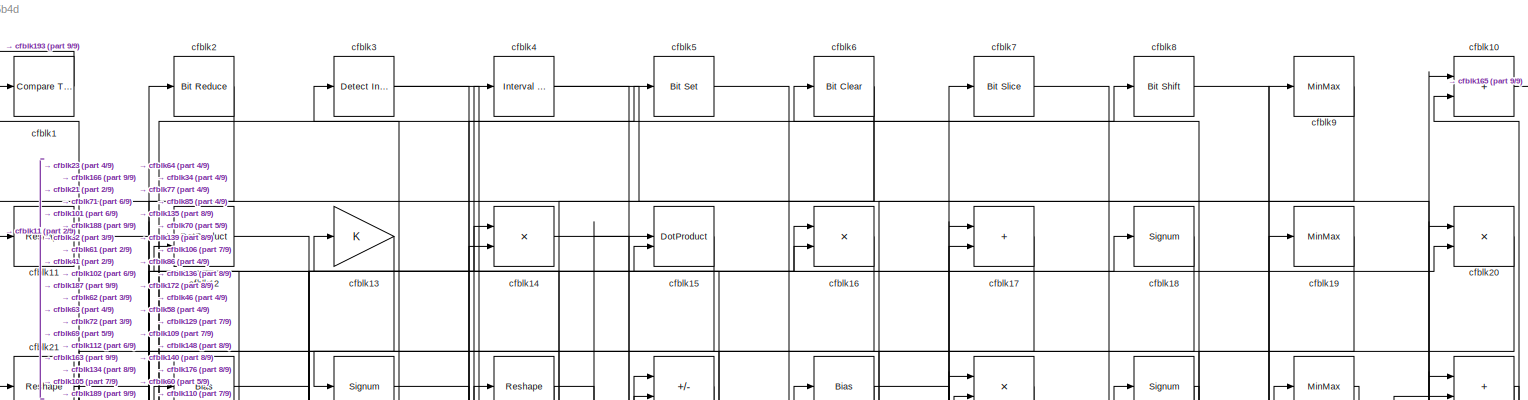
[diagram: root canvas - part 1/9, full width, top band]
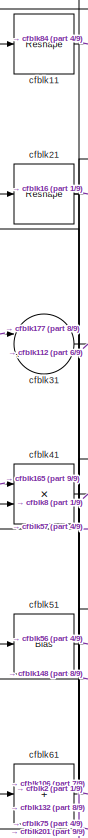
[diagram: root canvas - part 2/9, top left region]
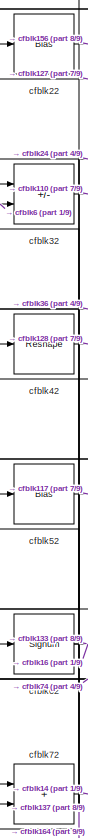
[diagram: root canvas - part 3/9, top left region]
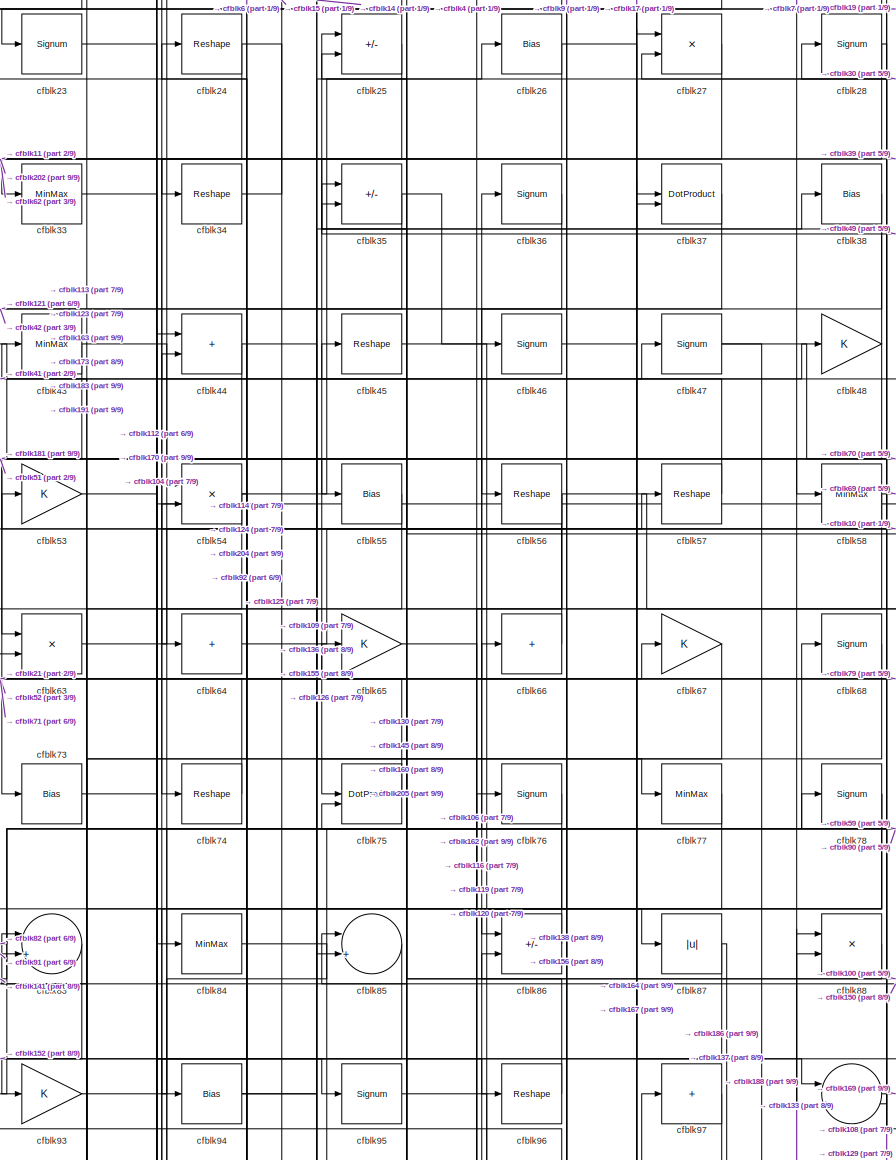
[diagram: root canvas - part 4/9, top center region]
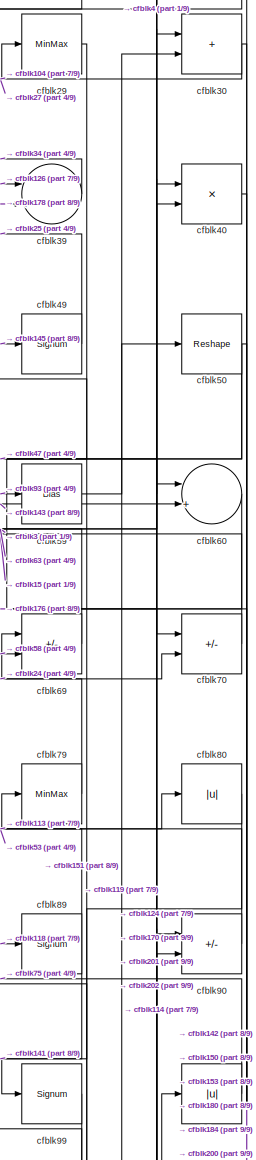
[diagram: root canvas - part 5/9, top right region]
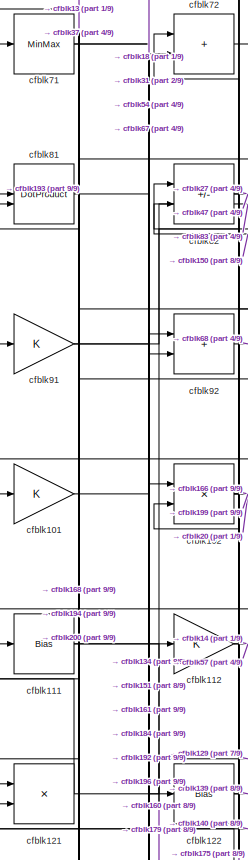
[diagram: root canvas - part 6/9, middle left region]
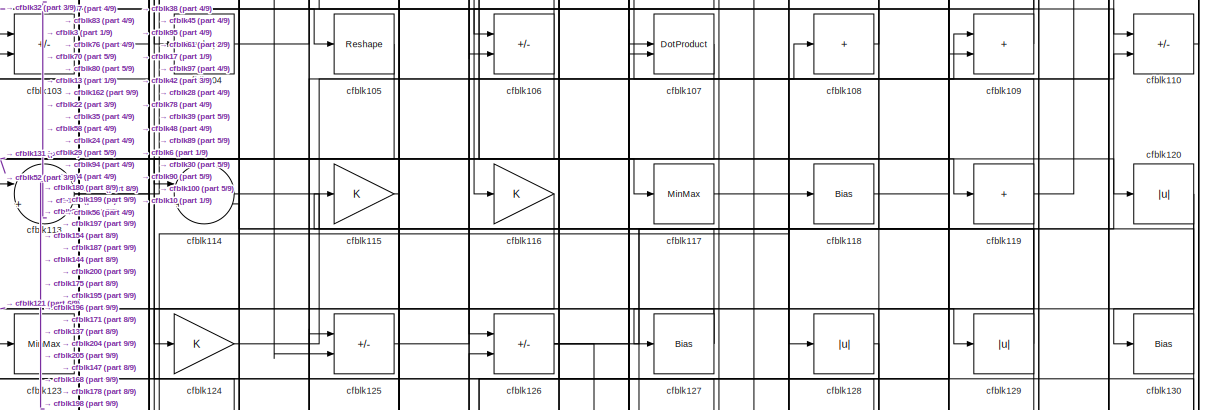
[diagram: root canvas - part 7/9, full width, middle band]
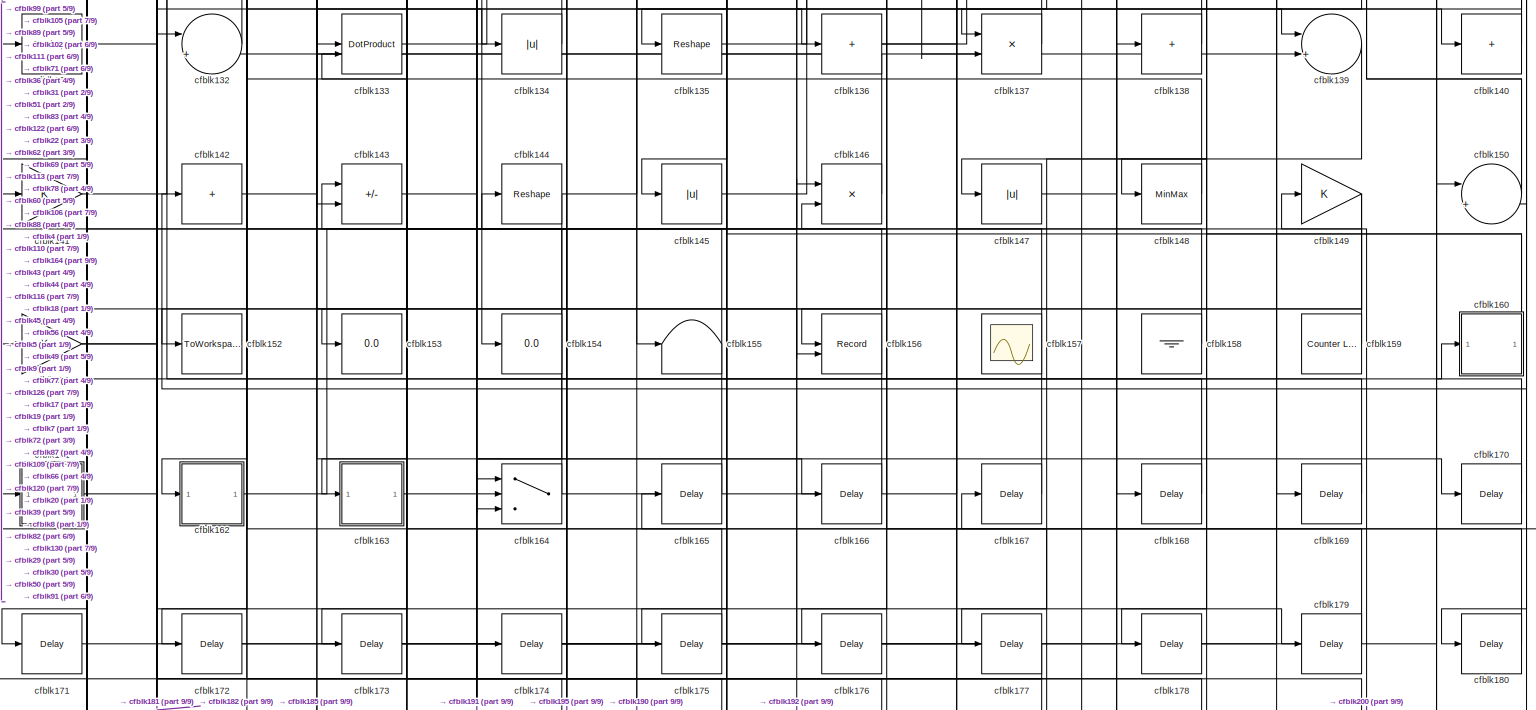
[diagram: root canvas - part 8/9, full width, bottom band]
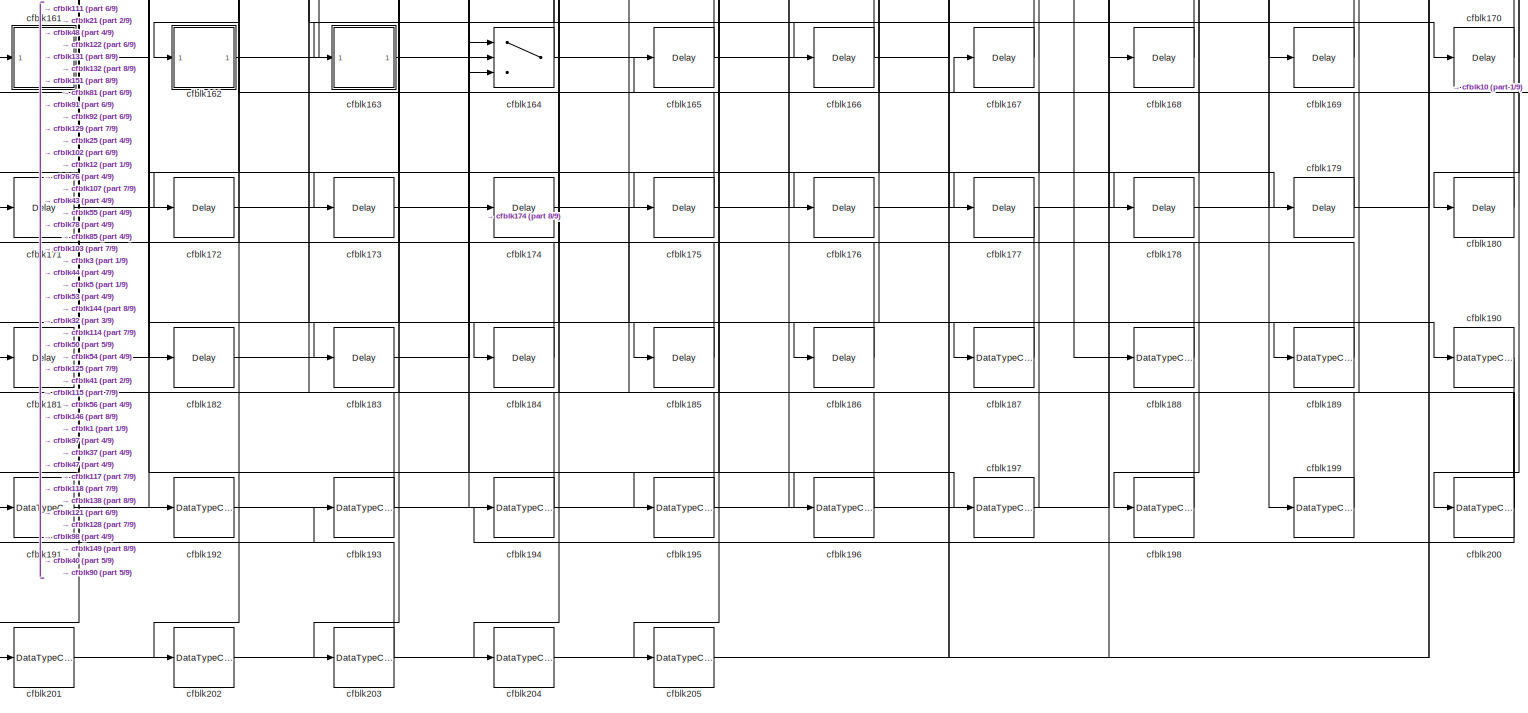
[diagram: root canvas - part 9/9, full width, bottom band]
MODEL slx_a14f3ed95b4d
KIND model
CONFIG AbsTol = auto
CONFIG EnableMultiTasking = off
CONFIG FixedStep = auto
CONFIG MaxStep = auto
CONFIG MinStep = auto
CONFIG RelTol = 1e-3
CONFIG SampleTimeConstraint = Unconstrained
CONFIG SolverName = VariableStepAuto
CONFIG StartTime = 0.0
CONFIG StopTime = 10.0
BLOCK [Reference] cfblk1  REF=hdlsllib/Logic and Bit
Operations/Compare
To Constant
  SourceBlock = hdlsllib/Logic and Bit\nOperations/Compare\nTo Constant
  SourceType = Compare To Constant
BLOCK [Sum] cfblk10
  IconShape = rectangular
BLOCK [Abs] cfblk100
  SaturateOnIntegerOverflow = off
BLOCK [Gain] cfblk101
BLOCK [Product] cfblk102
  Inputs = */
  RndMeth = Zero
  SaturateOnIntegerOverflow = on
BLOCK [Sum] cfblk103
  IconShape = rectangular
  Inputs = +-
BLOCK [Reshape] cfblk104
BLOCK [Reshape] cfblk105
BLOCK [Sum] cfblk106
  IconShape = rectangular
  Inputs = +-
BLOCK [DotProduct] cfblk107
  OutDataTypeStr = Inherit: Inherit via internal rule
BLOCK [Sum] cfblk108
  IconShape = rectangular
  Inputs = +
BLOCK [Sum] cfblk109
  IconShape = rectangular
BLOCK [Reshape] cfblk11
BLOCK [Sum] cfblk110
  IconShape = rectangular
  Inputs = +-
BLOCK [Bias] cfblk111
  Bias = 0.0
  SaturateOnIntegerOverflow = off
BLOCK [Gain] cfblk112
BLOCK [Sum] cfblk113
  Inputs = |++
BLOCK [Sum] cfblk114
  Inputs = |++
BLOCK [Gain] cfblk115
BLOCK [Gain] cfblk116
BLOCK [MinMax] cfblk117
BLOCK [Bias] cfblk118
  Bias = 0.0
  SaturateOnIntegerOverflow = off
BLOCK [Sum] cfblk119
  IconShape = rectangular
  Inputs = +
BLOCK [DotProduct] cfblk12
  OutDataTypeStr = Inherit: Inherit via internal rule
BLOCK [Abs] cfblk120
  SaturateOnIntegerOverflow = off
BLOCK [Product] cfblk121
  Inputs = */
  RndMeth = Zero
  SaturateOnIntegerOverflow = on
BLOCK [Bias] cfblk122
  Bias = 0.0
  SaturateOnIntegerOverflow = off
BLOCK [MinMax] cfblk123
BLOCK [Gain] cfblk124
BLOCK [Sum] cfblk125
  IconShape = rectangular
  Inputs = +-
BLOCK [Sum] cfblk126
  IconShape = rectangular
  Inputs = +-
BLOCK [Bias] cfblk127
  Bias = 0.0
  SaturateOnIntegerOverflow = off
BLOCK [Abs] cfblk128
  SaturateOnIntegerOverflow = off
BLOCK [Abs] cfblk129
  SaturateOnIntegerOverflow = off
BLOCK [Gain] cfblk13
BLOCK [Bias] cfblk130
  Bias = 0.0
  SaturateOnIntegerOverflow = off
BLOCK [Reshape] cfblk131
BLOCK [Sum] cfblk132
  Inputs = |++
BLOCK [DotProduct] cfblk133
  OutDataTypeStr = Inherit: Inherit via internal rule
BLOCK [Abs] cfblk134
  SaturateOnIntegerOverflow = off
BLOCK [Reshape] cfblk135
BLOCK [Sum] cfblk136
  IconShape = rectangular
  Inputs = +
BLOCK [Product] cfblk137
  Inputs = */
  RndMeth = Zero
  SaturateOnIntegerOverflow = on
BLOCK [Sum] cfblk138
  IconShape = rectangular
  Inputs = +
BLOCK [Sum] cfblk139
  Inputs = |++
BLOCK [Product] cfblk14
  Inputs = */
  RndMeth = Zero
  SaturateOnIntegerOverflow = on
BLOCK [Sum] cfblk140
  IconShape = rectangular
  Inputs = +
BLOCK [Gain] cfblk141
BLOCK [Sum] cfblk142
  IconShape = rectangular
  Inputs = +
BLOCK [Sum] cfblk143
  IconShape = rectangular
  Inputs = +-
BLOCK [Reshape] cfblk144
BLOCK [Abs] cfblk145
  SaturateOnIntegerOverflow = off
BLOCK [Product] cfblk146
  Inputs = */
  RndMeth = Zero
  SaturateOnIntegerOverflow = on
BLOCK [Abs] cfblk147
  SaturateOnIntegerOverflow = off
BLOCK [MinMax] cfblk148
BLOCK [Gain] cfblk149
BLOCK [DotProduct] cfblk15
  OutDataTypeStr = Inherit: Inherit via internal rule
BLOCK [Sum] cfblk150
  Inputs = |++
BLOCK [Gain] cfblk151
BLOCK [ToWorkspace] cfblk152
  MaxDataPoints = inf
  SampleTime = -1
  SaveFormat = Timeseries
  VariableName = simout
BLOCK [Display] cfblk153
  Decimation = 1
BLOCK [Display] cfblk154
  Decimation = 1
BLOCK [Terminator] cfblk155
BLOCK [Record] cfblk156
  CompatibilityTag = XY
  FileSettingsInternal = {"entries":[{"content":{"excelSettings":{"content":{},"type":"Streamout.ExcelSettings"}},"type":"Streamout.FileSettingStorage","uuid":""}],"packageUris":["http:\/\/schema.mathworks.com\/mf0\/streamout_blocks\/R2020a"],"version":"1.0"}
  Layout = [1 1]
  SignalsInternal = {"entries":[{"content":{"signals":[{"content":{"blockPath":[],"dimensions":[1],"domain":"","lineColor":"#a2142f","plots":[1],"port":1,"signalID":4282,"signalName":"XY Graph:1"},"type":"RecordBlkView.Signal","uuid":""},{"content":{"blockPath":[],"dimensions":[1],"domain":"","lineColor":"#139fff","plots":[1],"port":2,"signalID":4285,"signalName":"XY Graph:2"},"type":"RecordBlkView.Signal","uuid":""}...<+146ch>
  VisualizationBindings = {"xyplotplugin":{"info":[{"series":[{"bindingParametersList":[{"parameter":"X-Axis","signalID":4282,"signalName":"XY Graph:1"},{"parameter":"Y-Axis","signalID":4285,"signalName":"XY Graph:2"}],"seriesID":14255}],"subplotID":1}]}}
  st = -1
BLOCK [Scope] cfblk157
  Floating = on
  NumInputPorts = 1
  ScopeSpecificationString = Simulink.scopes.TimeScopeBlockCfg('CurrentConfiguration', extmgr.ConfigurationSet(extmgr.Configuration('Core','General UI',true,'FigureColor',[0.156862745098039 0.156862745098039 0.156862745098039]),extmgr.Configuration('Core','Source UI',true),extmgr.Configuration('Sources','WiredSimulink',true,'DataLoggingVariableName','ScopeData1','DataLoggingSaveFormat','StructureWithTime','DataLoggingLimitDat...<+2713ch>
BLOCK [Ground] cfblk158
BLOCK [Reference] cfblk159  REF=hdlsllib/Sources/Counter
Limited
  SourceBlock = hdlsllib/Sources/Counter\nLimited
  SourceType = Counter Limited
BLOCK [Product] cfblk16
  Inputs = */
  RndMeth = Zero
  SaturateOnIntegerOverflow = on
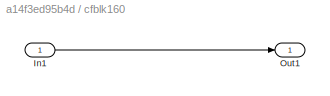
BLOCK [SubSystem] cfblk160
  LibrarySourceBlock = hdlsllib/Ports &\nSubsystems/Subsystem
BLOCK [Inport] cfblk160/In1
BLOCK [Outport] cfblk160/Out1
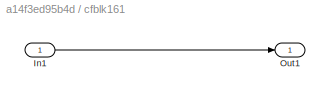
BLOCK [SubSystem] cfblk161
  LibrarySourceBlock = hdlsllib/Ports &\nSubsystems/Subsystem
BLOCK [Inport] cfblk161/In1
BLOCK [Outport] cfblk161/Out1
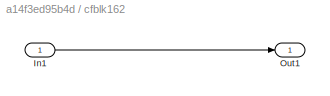
BLOCK [SubSystem] cfblk162
  LibrarySourceBlock = hdlsllib/Ports &\nSubsystems/Subsystem
BLOCK [Inport] cfblk162/In1
BLOCK [Outport] cfblk162/Out1
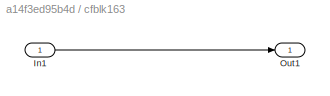
BLOCK [SubSystem] cfblk163
  LibrarySourceBlock = hdlsllib/Ports &\nSubsystems/Subsystem
BLOCK [Inport] cfblk163/In1
BLOCK [Outport] cfblk163/Out1
BLOCK [Switch] cfblk164
  InputSameDT = off
  SaturateOnIntegerOverflow = off
BLOCK [Delay] cfblk165
  InputPortMap = u0
  SampleTime = 1
BLOCK [Delay] cfblk166
  InputPortMap = u0
  SampleTime = 1
BLOCK [Delay] cfblk167
  InputPortMap = u0
  SampleTime = 1
BLOCK [Delay] cfblk168
  InputPortMap = u0
  SampleTime = 1
BLOCK [Delay] cfblk169
  InputPortMap = u0
  SampleTime = 1
BLOCK [Sum] cfblk17
  IconShape = rectangular
BLOCK [Delay] cfblk170
  InputPortMap = u0
  SampleTime = 1
BLOCK [Delay] cfblk171
  InputPortMap = u0
  SampleTime = 1
BLOCK [Delay] cfblk172
  InputPortMap = u0
  SampleTime = 1
BLOCK [Delay] cfblk173
  InputPortMap = u0
  SampleTime = 1
BLOCK [Delay] cfblk174
  InputPortMap = u0
  SampleTime = 1
BLOCK [Delay] cfblk175
  InputPortMap = u0
  SampleTime = 1
BLOCK [Delay] cfblk176
  InputPortMap = u0
  SampleTime = 1
BLOCK [Delay] cfblk177
  InputPortMap = u0
  SampleTime = 1
BLOCK [Delay] cfblk178
  InputPortMap = u0
  SampleTime = 1
BLOCK [Delay] cfblk179
  InputPortMap = u0
  SampleTime = 1
BLOCK [Signum] cfblk18
BLOCK [Delay] cfblk180
  InputPortMap = u0
  SampleTime = 1
BLOCK [Delay] cfblk181
  InputPortMap = u0
  SampleTime = 1
BLOCK [Delay] cfblk182
  InputPortMap = u0
  SampleTime = 1
BLOCK [Delay] cfblk183
  InputPortMap = u0
  SampleTime = 1
BLOCK [Delay] cfblk184
  InputPortMap = u0
  SampleTime = 1
BLOCK [Delay] cfblk185
  InputPortMap = u0
  SampleTime = 1
BLOCK [Delay] cfblk186
  InputPortMap = u0
  SampleTime = 1
BLOCK [DataTypeConversion] cfblk187
  OutDataTypeStr = uint8
  RndMeth = Floor
  SaturateOnIntegerOverflow = off
BLOCK [DataTypeConversion] cfblk188
  OutDataTypeStr = uint8
  RndMeth = Floor
  SaturateOnIntegerOverflow = off
BLOCK [DataTypeConversion] cfblk189
  OutDataTypeStr = uint8
  RndMeth = Floor
  SaturateOnIntegerOverflow = off
BLOCK [MinMax] cfblk19
BLOCK [DataTypeConversion] cfblk190
  OutDataTypeStr = uint8
  RndMeth = Floor
  SaturateOnIntegerOverflow = off
BLOCK [DataTypeConversion] cfblk191
  OutDataTypeStr = uint8
  RndMeth = Floor
  SaturateOnIntegerOverflow = off
BLOCK [DataTypeConversion] cfblk192
  OutDataTypeStr = uint8
  RndMeth = Floor
  SaturateOnIntegerOverflow = off
BLOCK [DataTypeConversion] cfblk193
  OutDataTypeStr = uint8
  RndMeth = Floor
  SaturateOnIntegerOverflow = off
BLOCK [DataTypeConversion] cfblk194
  OutDataTypeStr = uint8
  RndMeth = Floor
  SaturateOnIntegerOverflow = off
BLOCK [DataTypeConversion] cfblk195
  RndMeth = Floor
  SaturateOnIntegerOverflow = off
BLOCK [DataTypeConversion] cfblk196
  OutDataTypeStr = uint8
  RndMeth = Floor
  SaturateOnIntegerOverflow = off
BLOCK [DataTypeConversion] cfblk197
  OutDataTypeStr = uint8
  RndMeth = Floor
  SaturateOnIntegerOverflow = off
BLOCK [DataTypeConversion] cfblk198
  OutDataTypeStr = uint8
  RndMeth = Floor
  SaturateOnIntegerOverflow = off
BLOCK [DataTypeConversion] cfblk199
  OutDataTypeStr = uint8
  RndMeth = Floor
  SaturateOnIntegerOverflow = off
BLOCK [Reference] cfblk2  REF=hdlsllib/Logic and Bit
Operations/Bit Reduce
  SourceBlock = hdlsllib/Logic and Bit\nOperations/Bit Reduce
  SourceType = Bit Reduce
BLOCK [Product] cfblk20
  Inputs = */
  RndMeth = Zero
  SaturateOnIntegerOverflow = on
BLOCK [DataTypeConversion] cfblk200
  RndMeth = Floor
  SaturateOnIntegerOverflow = off
BLOCK [DataTypeConversion] cfblk201
  OutDataTypeStr = uint8
  RndMeth = Floor
  SaturateOnIntegerOverflow = off
BLOCK [DataTypeConversion] cfblk202
  OutDataTypeStr = uint8
  RndMeth = Floor
  SaturateOnIntegerOverflow = off
BLOCK [DataTypeConversion] cfblk203
  RndMeth = Floor
  SaturateOnIntegerOverflow = off
BLOCK [DataTypeConversion] cfblk204
  OutDataTypeStr = uint8
  RndMeth = Floor
  SaturateOnIntegerOverflow = off
BLOCK [DataTypeConversion] cfblk205
  OutDataTypeStr = uint8
  RndMeth = Floor
  SaturateOnIntegerOverflow = off
BLOCK [Reshape] cfblk21
BLOCK [Bias] cfblk22
  Bias = 0.0
  SaturateOnIntegerOverflow = off
BLOCK [Signum] cfblk23
BLOCK [Reshape] cfblk24
BLOCK [Sum] cfblk25
  IconShape = rectangular
  Inputs = +-
BLOCK [Bias] cfblk26
  Bias = 0.0
  SaturateOnIntegerOverflow = off
BLOCK [Product] cfblk27
  Inputs = */
  RndMeth = Zero
  SaturateOnIntegerOverflow = on
BLOCK [Signum] cfblk28
BLOCK [MinMax] cfblk29
BLOCK [Reference] cfblk3  REF=simulink/Logic and Bit
Operations/Detect
Increase
  LibrarySourceBlock = hdlsllib/Logic and Bit\nOperations/Detect\nIncrease
  SourceBlock = simulink/Logic and Bit\nOperations/Detect\nIncrease
  SourceType = Detect Increase
BLOCK [Sum] cfblk30
  IconShape = rectangular
BLOCK [Sum] cfblk31
  Inputs = |++
BLOCK [Sum] cfblk32
  IconShape = rectangular
  Inputs = +-
BLOCK [MinMax] cfblk33
BLOCK [Reshape] cfblk34
BLOCK [Sum] cfblk35
  IconShape = rectangular
  Inputs = +-
BLOCK [Signum] cfblk36
BLOCK [DotProduct] cfblk37
  OutDataTypeStr = Inherit: Inherit via internal rule
BLOCK [Bias] cfblk38
  Bias = 0.0
  SaturateOnIntegerOverflow = off
BLOCK [Sum] cfblk39
  Inputs = |++
BLOCK [Reference] cfblk4  REF=hdlsllib/Logic and Bit
Operations/Interval Test
  SourceBlock = hdlsllib/Logic and Bit\nOperations/Interval Test
  SourceType = Interval Test
BLOCK [Product] cfblk40
  Inputs = */
  RndMeth = Zero
  SaturateOnIntegerOverflow = on
BLOCK [Product] cfblk41
  Inputs = */
  RndMeth = Zero
  SaturateOnIntegerOverflow = on
BLOCK [Reshape] cfblk42
BLOCK [MinMax] cfblk43
BLOCK [Sum] cfblk44
  IconShape = rectangular
BLOCK [Reshape] cfblk45
BLOCK [Signum] cfblk46
BLOCK [Signum] cfblk47
BLOCK [Gain] cfblk48
BLOCK [Signum] cfblk49
BLOCK [Reference] cfblk5  REF=simulink/Logic and Bit
Operations/Bit Set
  LibrarySourceBlock = hdlsllib/Logic and Bit\nOperations/Bit Set
  SourceBlock = simulink/Logic and Bit\nOperations/Bit Set
  SourceType = Bit Set
BLOCK [Reshape] cfblk50
BLOCK [Bias] cfblk51
  Bias = 0.0
  SaturateOnIntegerOverflow = off
BLOCK [Bias] cfblk52
  Bias = 0.0
  SaturateOnIntegerOverflow = off
BLOCK [Gain] cfblk53
BLOCK [Product] cfblk54
  Inputs = */
  RndMeth = Zero
  SaturateOnIntegerOverflow = on
BLOCK [Bias] cfblk55
  Bias = 0.0
  SaturateOnIntegerOverflow = off
BLOCK [Reshape] cfblk56
BLOCK [Reshape] cfblk57
BLOCK [MinMax] cfblk58
BLOCK [Bias] cfblk59
  Bias = 0.0
  SaturateOnIntegerOverflow = off
BLOCK [Reference] cfblk6  REF=simulink/Logic and Bit
Operations/Bit Clear
  LibrarySourceBlock = hdlsllib/Logic and Bit\nOperations/Bit Clear
  SourceBlock = simulink/Logic and Bit\nOperations/Bit Clear
  SourceType = Bit Clear
BLOCK [Sum] cfblk60
  Inputs = |++
BLOCK [Sum] cfblk61
  IconShape = rectangular
  Inputs = +
BLOCK [Signum] cfblk62
BLOCK [Product] cfblk63
  Inputs = */
  RndMeth = Zero
  SaturateOnIntegerOverflow = on
BLOCK [Sum] cfblk64
  IconShape = rectangular
  Inputs = +
BLOCK [Gain] cfblk65
BLOCK [Sum] cfblk66
  IconShape = rectangular
  Inputs = +
BLOCK [Gain] cfblk67
BLOCK [Signum] cfblk68
BLOCK [Sum] cfblk69
  IconShape = rectangular
  Inputs = +-
BLOCK [Reference] cfblk7  REF=hdlsllib/Logic and Bit
Operations/Bit Slice
  SourceBlock = hdlsllib/Logic and Bit\nOperations/Bit Slice
  SourceType = Bit Slice
BLOCK [Sum] cfblk70
  IconShape = rectangular
  Inputs = +-
BLOCK [MinMax] cfblk71
BLOCK [Sum] cfblk72
  IconShape = rectangular
BLOCK [Bias] cfblk73
  Bias = 0.0
  SaturateOnIntegerOverflow = off
BLOCK [Reshape] cfblk74
BLOCK [DotProduct] cfblk75
  OutDataTypeStr = Inherit: Inherit via internal rule
BLOCK [Signum] cfblk76
BLOCK [MinMax] cfblk77
BLOCK [Signum] cfblk78
BLOCK [MinMax] cfblk79
BLOCK [Reference] cfblk8  REF=hdlsllib/Logic and Bit
Operations/Bit Shift
  SourceBlock = hdlsllib/Logic and Bit\nOperations/Bit Shift
  SourceType = Bit Shift
BLOCK [Abs] cfblk80
  SaturateOnIntegerOverflow = off
BLOCK [DotProduct] cfblk81
  OutDataTypeStr = Inherit: Inherit via internal rule
BLOCK [Sum] cfblk82
  IconShape = rectangular
  Inputs = +-
BLOCK [Sum] cfblk83
  Inputs = |++
BLOCK [MinMax] cfblk84
BLOCK [Sum] cfblk85
  Inputs = |++
BLOCK [Sum] cfblk86
  IconShape = rectangular
  Inputs = +-
BLOCK [Abs] cfblk87
  SaturateOnIntegerOverflow = off
BLOCK [Product] cfblk88
  Inputs = */
  RndMeth = Zero
  SaturateOnIntegerOverflow = on
BLOCK [Signum] cfblk89
BLOCK [MinMax] cfblk9
BLOCK [Sum] cfblk90
  IconShape = rectangular
  Inputs = +-
BLOCK [Gain] cfblk91
BLOCK [Sum] cfblk92
  IconShape = rectangular
BLOCK [Gain] cfblk93
BLOCK [Bias] cfblk94
  Bias = 0.0
  SaturateOnIntegerOverflow = off
BLOCK [Signum] cfblk95
BLOCK [Reshape] cfblk96
BLOCK [Sum] cfblk97
  IconShape = rectangular
  Inputs = +
BLOCK [Sum] cfblk98
  Inputs = |++
BLOCK [Signum] cfblk99
LINE cfblk100:1 -> cfblk75:2
LINE cfblk101:1 -> cfblk18:1
NET cfblk102:1 -> cfblk166:1, cfblk199:1, cfblk20:2
LINE cfblk103:1 -> cfblk197:1
LINE cfblk104:1 -> cfblk29:1
LINE cfblk105:1 -> cfblk131:1
NET cfblk106:1 -> cfblk154:1, cfblk61:1
LINE cfblk107:1 -> cfblk203:1
LINE cfblk108:1 -> cfblk78:1
LINE cfblk109:1 -> cfblk6:1
LINE cfblk10:1 -> cfblk165:1
LINE cfblk110:1 -> cfblk10:2
NET cfblk111:1 -> cfblk160:1, cfblk179:1
NET cfblk112:1 -> cfblk14:2, cfblk57:1
NET cfblk113:1 -> cfblk70:2, cfblk80:1
LINE cfblk114:1 -> cfblk100:1
LINE cfblk115:1 -> cfblk195:1
LINE cfblk116:1 -> cfblk175:1
LINE cfblk117:1 -> cfblk168:1
LINE cfblk118:1 -> cfblk89:1
NET cfblk119:1 -> cfblk127:1, cfblk30:2, cfblk97:1
LINE cfblk11:1 -> cfblk84:1
NET cfblk120:1 -> cfblk130:1, cfblk178:1
NET cfblk121:1 -> cfblk101:1, cfblk129:1
NET cfblk122:1 -> cfblk139:2, cfblk82:2
LINE cfblk123:1 -> cfblk83:1
LINE cfblk124:1 -> cfblk90:2
LINE cfblk125:1 -> cfblk108:1
NET cfblk126:1 -> cfblk137:2, cfblk39:1, cfblk48:1
NET cfblk127:1 -> cfblk123:1, cfblk22:1
LINE cfblk128:1 -> cfblk198:1
NET cfblk129:1 -> cfblk13:1, cfblk162:1, cfblk28:1
LINE cfblk12:1 -> cfblk187:1
NET cfblk130:1 -> cfblk143:2, cfblk85:1
LINE cfblk131:1 -> cfblk182:1
LINE cfblk132:1 -> cfblk31:2
LINE cfblk133:1 -> cfblk88:2
LINE cfblk134:1 -> cfblk4:1
LINE cfblk135:1 -> cfblk9:1
NET cfblk136:1 -> cfblk19:1, cfblk7:1
LINE cfblk137:1 -> cfblk72:1
LINE cfblk138:1 -> cfblk66:1
LINE cfblk139:1 -> cfblk177:1
LINE cfblk13:1 -> cfblk71:1
LINE cfblk140:1 -> cfblk91:1
LINE cfblk141:1 -> cfblk36:1
LINE cfblk142:1 -> cfblk69:1
LINE cfblk143:1 -> cfblk60:2
NET cfblk144:1 -> cfblk110:2, cfblk164:3
LINE cfblk145:1 -> cfblk49:1
LINE cfblk146:1 -> cfblk132:2
LINE cfblk147:1 -> cfblk109:1
LINE cfblk148:1 -> cfblk51:1
NET cfblk149:1 -> cfblk171:1, cfblk172:1
LINE cfblk14:1 -> cfblk77:1
NET cfblk150:1 -> cfblk44:2, cfblk82:1
NET cfblk151:1 -> cfblk102:1, cfblk185:1
LINE cfblk158:1 -> cfblk143:1
LINE cfblk159:1 -> cfblk133:2
LINE cfblk15:1 -> cfblk63:2
LINE cfblk160/In1:1 -> cfblk160/Out1:1
NET cfblk160:1 -> cfblk147:1, cfblk45:1
LINE cfblk161/In1:1 -> cfblk161/Out1:1
LINE cfblk161:1 -> cfblk122:1
LINE cfblk162/In1:1 -> cfblk162/Out1:1
LINE cfblk162:1 -> cfblk76:1
LINE cfblk163/In1:1 -> cfblk163/Out1:1
LINE cfblk163:1 -> cfblk5:1
NET cfblk164:1 -> cfblk32:1, cfblk37:2
LINE cfblk165:1 -> cfblk41:1
LINE cfblk166:1 -> cfblk1:1
LINE cfblk167:1 -> cfblk37:1
LINE cfblk168:1 -> cfblk121:2
LINE cfblk169:1 -> cfblk54:1
LINE cfblk16:1 -> cfblk72:2
LINE cfblk170:1 -> cfblk90:1
LINE cfblk171:1 -> cfblk126:2
LINE cfblk172:1 -> cfblk17:2
LINE cfblk173:1 -> cfblk88:1
LINE cfblk174:1 -> cfblk190:1
LINE cfblk175:1 -> cfblk102:2
LINE cfblk176:1 -> cfblk20:1
LINE cfblk177:1 -> cfblk31:1
LINE cfblk178:1 -> cfblk39:2
LINE cfblk179:1 -> cfblk146:2
LINE cfblk17:1 -> cfblk106:1
LINE cfblk180:1 -> cfblk113:2
LINE cfblk181:1 -> cfblk132:1
LINE cfblk182:1 -> cfblk164:1
LINE cfblk183:1 -> cfblk44:1
LINE cfblk184:1 -> cfblk92:1
LINE cfblk185:1 -> cfblk164:2
LINE cfblk186:1 -> cfblk43:1
LINE cfblk187:1 -> cfblk114:2
LINE cfblk188:1 -> cfblk12:1
LINE cfblk189:1 -> cfblk12:2
LINE cfblk18:1 -> cfblk135:1
LINE cfblk190:1 -> cfblk194:1
LINE cfblk191:1 -> cfblk174:1
LINE cfblk192:1 -> cfblk146:1
LINE cfblk193:1 -> cfblk81:1
LINE cfblk194:1 -> cfblk81:2
NET cfblk195:1 -> cfblk138:1, cfblk144:1
LINE cfblk196:1 -> cfblk115:1
LINE cfblk197:1 -> cfblk167:1
LINE cfblk198:1 -> cfblk103:1
LINE cfblk199:1 -> cfblk103:2
LINE cfblk19:1 -> cfblk23:1
LINE cfblk1:1 -> cfblk193:1
NET cfblk200:1 -> cfblk111:1, cfblk125:1, cfblk149:1
LINE cfblk201:1 -> cfblk40:1
LINE cfblk202:1 -> cfblk40:2
NET cfblk203:1 -> cfblk118:1, cfblk161:1
LINE cfblk204:1 -> cfblk107:1
LINE cfblk205:1 -> cfblk107:2
LINE cfblk20:1 -> cfblk148:1
NET cfblk21:1 -> cfblk16:2, cfblk201:1
LINE cfblk22:1 -> cfblk156:2
LINE cfblk23:1 -> cfblk55:1
NET cfblk24:1 -> cfblk125:2, cfblk62:1
LINE cfblk25:1 -> cfblk202:1
NET cfblk26:1 -> cfblk74:1, cfblk98:1
LINE cfblk27:1 -> cfblk75:1
NET cfblk28:1 -> cfblk33:1, cfblk98:2
LINE cfblk29:1 -> cfblk142:1
LINE cfblk2:1 -> cfblk11:1
NET cfblk30:1 -> cfblk180:1, cfblk27:2
LINE cfblk31:1 -> cfblk112:1
LINE cfblk32:1 -> cfblk110:1
LINE cfblk33:1 -> cfblk96:1
LINE cfblk34:1 -> cfblk15:1
NET cfblk35:1 -> cfblk124:1, cfblk46:1
LINE cfblk36:1 -> cfblk42:1
LINE cfblk37:1 -> cfblk121:1
LINE cfblk38:1 -> cfblk116:1
LINE cfblk39:1 -> cfblk34:1
NET cfblk3:1 -> cfblk105:1, cfblk189:1
LINE cfblk40:1 -> cfblk200:1
LINE cfblk41:1 -> cfblk8:1
LINE cfblk42:1 -> cfblk128:1
NET cfblk43:1 -> cfblk155:1, cfblk73:1
NET cfblk44:1 -> cfblk136:1, cfblk63:1
LINE cfblk45:1 -> cfblk120:1
LINE cfblk46:1 -> cfblk17:1
NET cfblk47:1 -> cfblk188:1, cfblk70:1
NET cfblk48:1 -> cfblk181:1, cfblk25:2
LINE cfblk49:1 -> cfblk25:1
NET cfblk4:1 -> cfblk60:1, cfblk85:2
NET cfblk50:1 -> cfblk150:2, cfblk153:1, cfblk184:1
LINE cfblk51:1 -> cfblk56:1
LINE cfblk52:1 -> cfblk117:1
LINE cfblk53:1 -> cfblk170:1
NET cfblk54:1 -> cfblk204:1, cfblk26:1, cfblk92:2
LINE cfblk55:1 -> cfblk183:1
NET cfblk56:1 -> cfblk106:2, cfblk150:1, cfblk205:1, cfblk54:2
LINE cfblk57:1 -> cfblk41:2
NET cfblk58:1 -> cfblk114:1, cfblk69:2
LINE cfblk59:1 -> cfblk50:1
LINE cfblk5:1 -> cfblk139:1
LINE cfblk60:1 -> cfblk176:1
LINE cfblk61:1 -> cfblk2:1
NET cfblk62:1 -> cfblk133:1, cfblk16:1
LINE cfblk63:1 -> cfblk30:1
LINE cfblk64:1 -> cfblk10:1
LINE cfblk65:1 -> cfblk87:1
LINE cfblk66:1 -> cfblk35:2
LINE cfblk67:1 -> cfblk113:1
LINE cfblk68:1 -> cfblk93:1
LINE cfblk69:1 -> cfblk3:1
NET cfblk6:1 -> cfblk32:2, cfblk64:1
LINE cfblk70:1 -> cfblk15:2
NET cfblk71:1 -> cfblk134:1, cfblk67:1
LINE cfblk72:1 -> cfblk14:1
LINE cfblk73:1 -> cfblk95:1
LINE cfblk74:1 -> cfblk52:1
LINE cfblk75:1 -> cfblk21:1
LINE cfblk76:1 -> cfblk104:1
LINE cfblk77:1 -> cfblk156:1
NET cfblk78:1 -> cfblk173:1, cfblk191:1, cfblk94:1
LINE cfblk79:1 -> cfblk24:1
LINE cfblk7:1 -> cfblk58:1
LINE cfblk80:1 -> cfblk99:1
LINE cfblk81:1 -> cfblk192:1
NET cfblk82:1 -> cfblk27:1, cfblk47:1
LINE cfblk83:1 -> cfblk152:1
LINE cfblk84:1 -> cfblk126:1
LINE cfblk85:1 -> cfblk163:1
LINE cfblk86:1 -> cfblk35:1
NET cfblk87:1 -> cfblk137:1, cfblk145:1
LINE cfblk88:1 -> cfblk86:2
NET cfblk89:1 -> cfblk141:1, cfblk79:1
LINE cfblk8:1 -> cfblk140:1
LINE cfblk90:1 -> cfblk53:1
NET cfblk91:1 -> cfblk196:1, cfblk83:2
LINE cfblk92:1 -> cfblk68:1
LINE cfblk93:1 -> cfblk59:1
NET cfblk94:1 -> cfblk109:2, cfblk38:1
LINE cfblk95:1 -> cfblk119:1
LINE cfblk96:1 -> cfblk65:1
LINE cfblk97:1 -> cfblk186:1
LINE cfblk98:1 -> cfblk169:1
LINE cfblk99:1 -> cfblk151:1
LINE cfblk9:1 -> cfblk86:1
note: NET lines group one-source signal fan-out (src -> all destinations, sorted); 1:1 wires keep LINE
